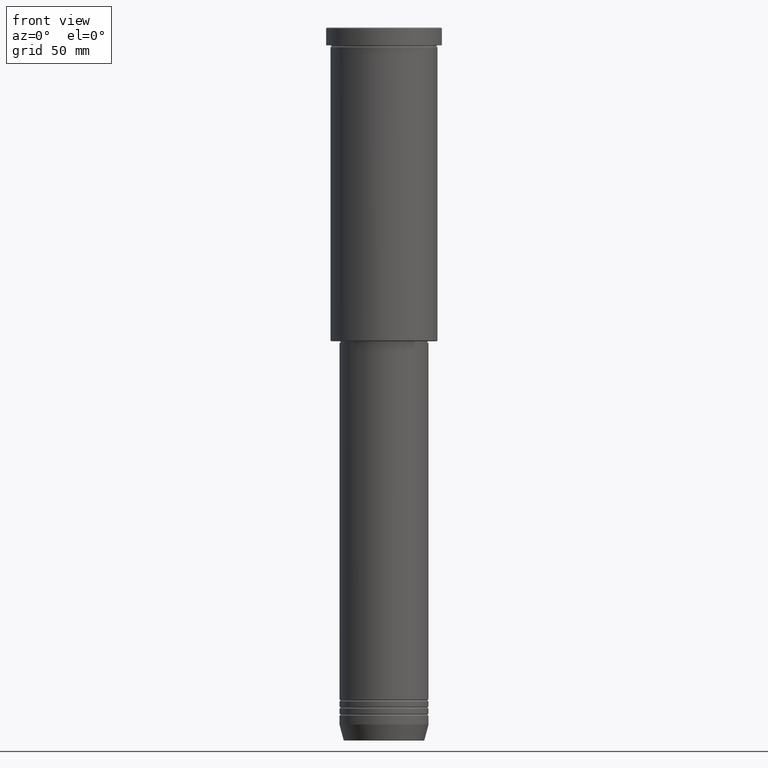
[diagram: clean part render]
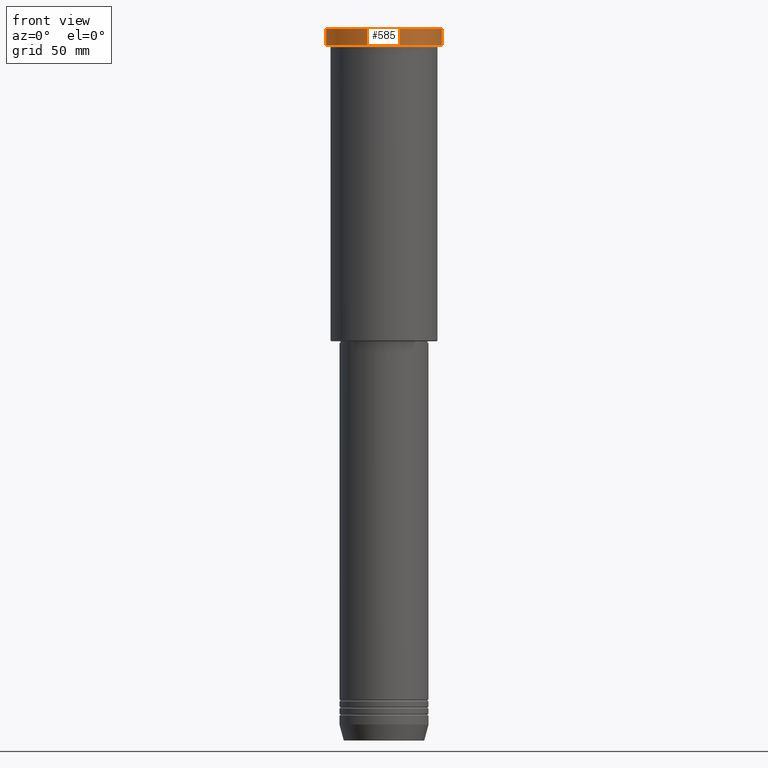
[diagram: same view with one face highlighted and labeled with its STEP entity id]
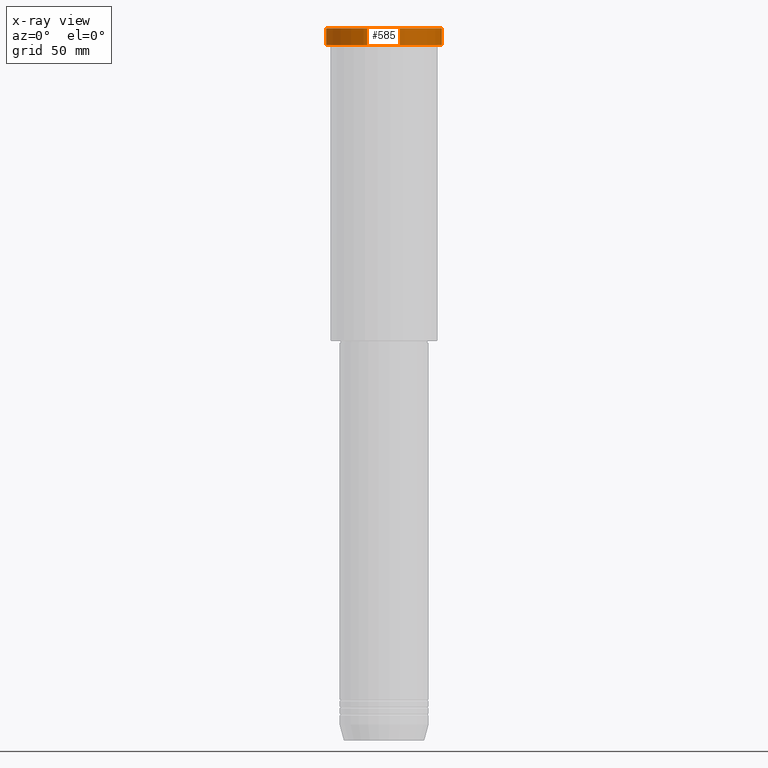
[diagram: x-ray of the same camera — body ghosted, the highlighted face saturated]
A machine part, front view. The second image highlights one B-rep face of the part: STEP entity #585.
The next image is the same camera in x-ray: the body ghosted, the highlighted face saturated — about 0% of this face is hidden behind the body in this view.
In plain terms, the highlighted cylindrical surface (partial cylindrical patch) has radius 32.5 mm, axis along (-0, -0, 1).
Its self-contained STEP definition (entity closure, byte-faithful):
#12 = AXIS2_PLACEMENT_3D ( 'NONE', #735, #280, #648 ) ;
#25 = EDGE_CURVE ( 'NONE', #343, #372, #322, .T. ) ;
#29 = CARTESIAN_POINT ( 'NONE',  ( 32.50000000000000000, 0.000000000000000000, -9.999999999999992895 ) ) ;
#62 = VECTOR ( 'NONE', #971, 1000.000000000000000 ) ;
#64 = CARTESIAN_POINT ( 'NONE',  ( -32.50000000000000000, 3.980102097228898626E-15, -9.999999999999992895 ) ) ;
#77 = DIRECTION ( 'NONE',  ( 1.000000000000000000, 0.000000000000000000, 0.000000000000000000 ) ) ;
#119 = CARTESIAN_POINT ( 'NONE',  ( 32.50000000000000000, 0.000000000000000000, -0.4999999999999726885 ) ) ;
#121 = CARTESIAN_POINT ( 'NONE',  ( -32.50000000000000000, 3.980102097228898626E-15, 0.000000000000000000 ) ) ;
#140 = EDGE_LOOP ( 'NONE', ( #1159, #1038, #1010, #337 ) ) ;
#163 = VECTOR ( 'NONE', #1127, 1000.000000000000000 ) ;
#244 = CARTESIAN_POINT ( 'NONE',  ( 0.000000000000000000, 0.000000000000000000, -0.4999999999999726885 ) ) ;
#277 = CARTESIAN_POINT ( 'NONE',  ( 0.000000000000000000, 0.000000000000000000, 0.000000000000000000 ) ) ;
#280 = DIRECTION ( 'NONE',  ( -0.000000000000000000, -0.000000000000000000, 1.000000000000000000 ) ) ;
#322 = LINE ( 'NONE', #1068, #62 ) ;
#337 = ORIENTED_EDGE ( 'NONE', *, *, #854, .T. ) ;
#343 = VERTEX_POINT ( 'NONE', #29 ) ;
#357 = CARTESIAN_POINT ( 'NONE',  ( -32.50000000000000000, 3.980102097228898626E-15, -0.4999999999999726885 ) ) ;
#370 = DIRECTION ( 'NONE',  ( 1.000000000000000000, 0.000000000000000000, 0.000000000000000000 ) ) ;
#372 = VERTEX_POINT ( 'NONE', #119 ) ;
#381 = DIRECTION ( 'NONE',  ( -0.000000000000000000, -0.000000000000000000, 1.000000000000000000 ) ) ;
#395 = LINE ( 'NONE', #121, #163 ) ;
#500 = CIRCLE ( 'NONE', #12, 32.50000000000000000 ) ;
#585 = ADVANCED_FACE ( 'NONE', ( #1001 ), #654, .T. ) ;
#648 = DIRECTION ( 'NONE',  ( 1.000000000000000000, 0.000000000000000000, 0.000000000000000000 ) ) ;
#654 = CYLINDRICAL_SURFACE ( 'NONE', #869, 32.50000000000000000 ) ;
#735 = CARTESIAN_POINT ( 'NONE',  ( 0.000000000000000000, 0.000000000000000000, -9.999999999999992895 ) ) ;
#754 = AXIS2_PLACEMENT_3D ( 'NONE', #244, #977, #77 ) ;
#854 = EDGE_CURVE ( 'NONE', #372, #1070, #985, .T. ) ;
#869 = AXIS2_PLACEMENT_3D ( 'NONE', #277, #381, #370 ) ;
#909 = VERTEX_POINT ( 'NONE', #64 ) ;
#971 = DIRECTION ( 'NONE',  ( -0.000000000000000000, -0.000000000000000000, 1.000000000000000000 ) ) ;
#977 = DIRECTION ( 'NONE',  ( 0.000000000000000000, 0.000000000000000000, -1.000000000000000000 ) ) ;
#985 = CIRCLE ( 'NONE', #754, 32.50000000000000000 ) ;
#1001 = FACE_OUTER_BOUND ( 'NONE', #140, .T. ) ;
#1010 = ORIENTED_EDGE ( 'NONE', *, *, #25, .T. ) ;
#1038 = ORIENTED_EDGE ( 'NONE', *, *, #1080, .T. ) ;
#1068 = CARTESIAN_POINT ( 'NONE',  ( 32.50000000000000000, 0.000000000000000000, 0.000000000000000000 ) ) ;
#1070 = VERTEX_POINT ( 'NONE', #357 ) ;
#1080 = EDGE_CURVE ( 'NONE', #909, #343, #500, .T. ) ;
#1127 = DIRECTION ( 'NONE',  ( -0.000000000000000000, -0.000000000000000000, 1.000000000000000000 ) ) ;
#1152 = EDGE_CURVE ( 'NONE', #909, #1070, #395, .T. ) ;
#1159 = ORIENTED_EDGE ( 'NONE', *, *, #1152, .F. ) ;